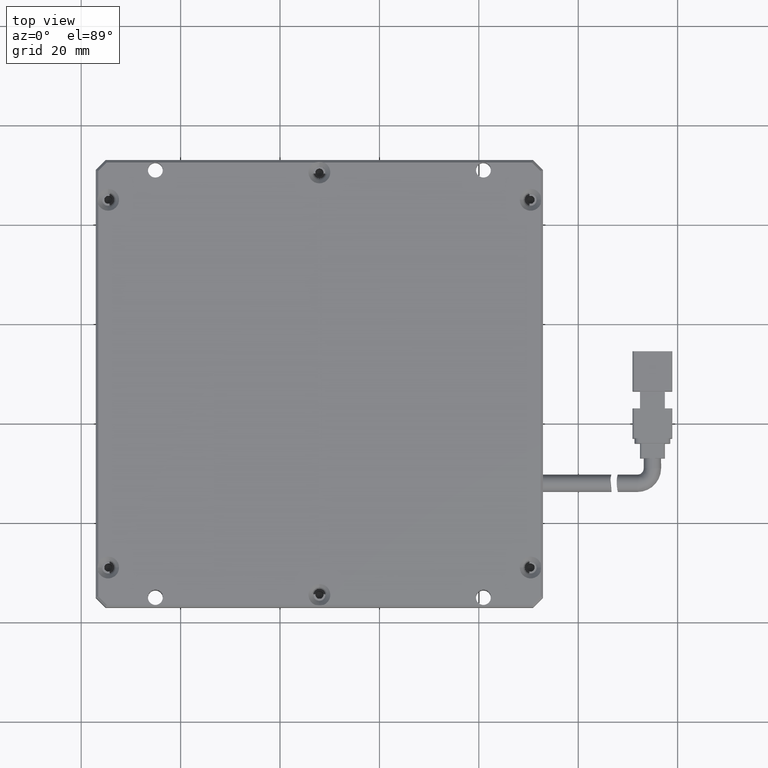
[diagram: clean part render]
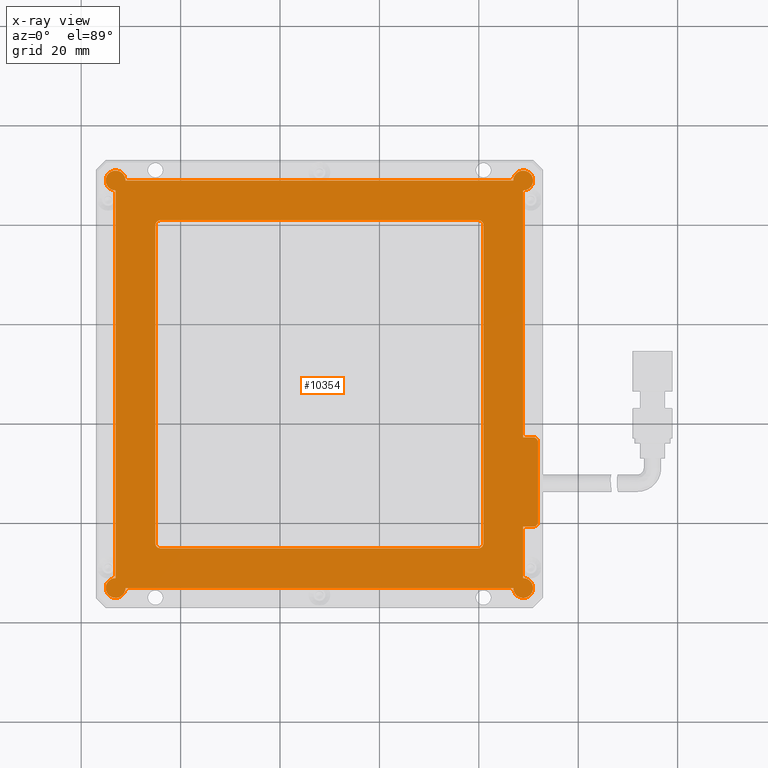
[diagram: x-ray — body ghosted, one internal face saturated and labeled with its STEP entity id]
A machine part, top view, then the same camera in x-ray: the body is ghosted and one INTERNAL B-rep face — a face not visible from any outside direction — is saturated and labeled: STEP entity #10354.
In plain terms, the highlighted planar face has unit normal (-0, 0, 1).
Its self-contained STEP definition (entity closure, byte-faithful):
#392 = VERTEX_POINT ( 'NONE', #1095 ) ;
#471 = AXIS2_PLACEMENT_3D ( 'NONE', #17261, #15841, #7512 ) ;
#517 = EDGE_CURVE ( 'NONE', #6477, #16627, #3420, .T. ) ;
#523 = DIRECTION ( 'NONE',  ( -0.0000000000000000000, -0.0000000000000000000, 1.000000000000000000 ) ) ;
#628 = CIRCLE ( 'NONE', #15770, 1.000000000000000900 ) ;
#819 = AXIS2_PLACEMENT_3D ( 'NONE', #3989, #13684, #5365 ) ;
#827 = VECTOR ( 'NONE', #16611, 1000.000000000000000 ) ;
#917 = CARTESIAN_POINT ( 'NONE',  ( 0.9207407407407775000, -4.059999999999994300, -2.000000000000000000 ) ) ;
#927 = ORIENTED_EDGE ( 'NONE', *, *, #2128, .T. ) ;
#1095 = CARTESIAN_POINT ( 'NONE',  ( 6.920740740740755300, 68.93999999999999800, -2.000000000000000000 ) ) ;
#1235 = ORIENTED_EDGE ( 'NONE', *, *, #8950, .T. ) ;
#1514 = ORIENTED_EDGE ( 'NONE', *, *, #14128, .T. ) ;
#1583 = CARTESIAN_POINT ( 'NONE',  ( -73.07925925925924600, 66.93999999999999800, -2.000000000000000000 ) ) ;
#1654 = AXIS2_PLACEMENT_3D ( 'NONE', #15470, #7140, #16914 ) ;
#1706 = CIRCLE ( 'NONE', #2737, 2.000000000000001800 ) ;
#1744 = CARTESIAN_POINT ( 'NONE',  ( -64.07925925925923100, -4.059999999999994300, -2.000000000000000000 ) ) ;
#1789 = EDGE_CURVE ( 'NONE', #16627, #2000, #13084, .T. ) ;
#1872 = DIRECTION ( 'NONE',  ( -0.0000000000000000000, -0.0000000000000000000, -1.000000000000000000 ) ) ;
#1901 = ORIENTED_EDGE ( 'NONE', *, *, #9074, .T. ) ;
#2000 = VERTEX_POINT ( 'NONE', #8662 ) ;
#2043 = CIRCLE ( 'NONE', #1654, 2.000000000000001800 ) ;
#2128 = EDGE_CURVE ( 'NONE', #2000, #4705, #10922, .T. ) ;
#2164 = LINE ( 'NONE', #2299, #2571 ) ;
#2231 = EDGE_CURVE ( 'NONE', #17252, #18024, #10272, .T. ) ;
#2299 = CARTESIAN_POINT ( 'NONE',  ( -73.07925925925924600, -0.7385637334317435300, -2.000000000000000000 ) ) ;
#2411 = VERTEX_POINT ( 'NONE', #12847 ) ;
#2556 = EDGE_CURVE ( 'NONE', #10603, #17093, #6719, .T. ) ;
#2571 = VECTOR ( 'NONE', #12011, 1000.000000000000000 ) ;
#2580 = EDGE_CURVE ( 'NONE', #14226, #8341, #8226, .T. ) ;
#2634 = CARTESIAN_POINT ( 'NONE',  ( 10.92074074074075800, 68.93999999999999800, -2.000000000000000000 ) ) ;
#2737 = AXIS2_PLACEMENT_3D ( 'NONE', #8225, #18034, #9660 ) ;
#2804 = CIRCLE ( 'NONE', #16435, 2.000000000000001800 ) ;
#2823 = ORIENTED_EDGE ( 'NONE', *, *, #16561, .T. ) ;
#2849 = CARTESIAN_POINT ( 'NONE',  ( -0.07925925925925114700, 60.94000000000000500, -2.000000000000000000 ) ) ;
#3032 = VERTEX_POINT ( 'NONE', #16434 ) ;
#3108 = CARTESIAN_POINT ( 'NONE',  ( -65.07925925925923100, 60.94000000000000500, -2.000000000000000000 ) ) ;
#3276 = VERTEX_POINT ( 'NONE', #16541 ) ;
#3335 = DIRECTION ( 'NONE',  ( -0.0000000000000000000, -0.0000000000000000000, 1.000000000000000000 ) ) ;
#3420 = LINE ( 'NONE', #6506, #8374 ) ;
#3752 = VECTOR ( 'NONE', #9337, 1000.000000000000000 ) ;
#3786 = DIRECTION ( 'NONE',  ( 0.0000000000000000000, 1.000000000000000000, -0.0000000000000000000 ) ) ;
#3804 = AXIS2_PLACEMENT_3D ( 'NONE', #11657, #3335, #13042 ) ;
#3989 = CARTESIAN_POINT ( 'NONE',  ( 8.920740740740756200, 68.93999999999999800, -2.000000000000000000 ) ) ;
#4030 = CARTESIAN_POINT ( 'NONE',  ( -0.07925925925922339100, -4.059999999999994300, -2.000000000000000000 ) ) ;
#4039 = CARTESIAN_POINT ( 'NONE',  ( 8.920740740740770400, 66.93999999999999800, -2.000000000000000000 ) ) ;
#4077 = EDGE_CURVE ( 'NONE', #3032, #18024, #8086, .T. ) ;
#4319 = EDGE_CURVE ( 'NONE', #14796, #11846, #17504, .T. ) ;
#4434 = EDGE_CURVE ( 'NONE', #10603, #2411, #13973, .T. ) ;
#4523 = LINE ( 'NONE', #6845, #827 ) ;
#4561 = CARTESIAN_POINT ( 'NONE',  ( 8.920740740740770400, -13.06000000000001600, -2.000000000000000000 ) ) ;
#4646 = VERTEX_POINT ( 'NONE', #13188 ) ;
#4705 = VERTEX_POINT ( 'NONE', #11572 ) ;
#4779 = AXIS2_PLACEMENT_3D ( 'NONE', #1744, #12875, #11477 ) ;
#4825 = DIRECTION ( 'NONE',  ( 1.000000000000000000, 0.0000000000000000000, 0.0000000000000000000 ) ) ;
#5012 = DIRECTION ( 'NONE',  ( 0.0000000000000000000, 1.000000000000000000, -0.0000000000000000000 ) ) ;
#5130 = DIRECTION ( 'NONE',  ( -1.000000000000000000, -0.0000000000000000000, -0.0000000000000000000 ) ) ;
#5365 = DIRECTION ( 'NONE',  ( 1.000000000000000000, 0.0000000000000000000, 0.0000000000000000000 ) ) ;
#5414 = DIRECTION ( 'NONE',  ( 1.000000000000000000, 0.0000000000000000000, 0.0000000000000000000 ) ) ;
#5732 = FACE_OUTER_BOUND ( 'NONE', #12897, .T. ) ;
#5876 = CARTESIAN_POINT ( 'NONE',  ( 10.92074074074078600, 17.26143626656825700, -1.999999999999999100 ) ) ;
#6031 = DIRECTION ( 'NONE',  ( -0.0000000000000000000, -0.0000000000000000000, 1.000000000000000000 ) ) ;
#6099 = AXIS2_PLACEMENT_3D ( 'NONE', #7078, #16852, #8463 ) ;
#6166 = VECTOR ( 'NONE', #5012, 1000.000000000000000 ) ;
#6356 = VECTOR ( 'NONE', #3786, 1000.000000000000000 ) ;
#6382 = CARTESIAN_POINT ( 'NONE',  ( 11.92074074074077400, 0.2614362665682608000, -1.999999999999999100 ) ) ;
#6477 = VERTEX_POINT ( 'NONE', #1583 ) ;
#6492 = DIRECTION ( 'NONE',  ( -0.0000000000000000000, -1.000000000000000000, 0.0000000000000000000 ) ) ;
#6506 = CARTESIAN_POINT ( 'NONE',  ( -73.07925925925924600, -13.06000000000001600, -2.000000000000000000 ) ) ;
#6548 = VECTOR ( 'NONE', #5130, 1000.000000000000000 ) ;
#6641 = EDGE_CURVE ( 'NONE', #392, #4646, #17267, .T. ) ;
#6719 = CIRCLE ( 'NONE', #4779, 1.000000000000000900 ) ;
#6845 = CARTESIAN_POINT ( 'NONE',  ( -73.07925925925924600, 17.26143626656825700, -2.000000000000000000 ) ) ;
#6965 = CARTESIAN_POINT ( 'NONE',  ( 0.9207407407407497400, 60.94000000000000500, -2.000000000000000000 ) ) ;
#7078 = CARTESIAN_POINT ( 'NONE',  ( -73.07925925925924600, -13.06000000000001600, -2.000000000000000000 ) ) ;
#7085 = AXIS2_PLACEMENT_3D ( 'NONE', #11815, #11512, #11394 ) ;
#7120 = CARTESIAN_POINT ( 'NONE',  ( -73.07925925925924600, 68.94000000000001200, -2.000000000000000000 ) ) ;
#7140 = DIRECTION ( 'NONE',  ( -0.0000000000000000000, -0.0000000000000000000, 1.000000000000000000 ) ) ;
#7195 = CARTESIAN_POINT ( 'NONE',  ( 8.920740740740770400, -0.7385637334317435300, -2.000000000000000000 ) ) ;
#7222 = LINE ( 'NONE', #3108, #14624 ) ;
#7228 = VECTOR ( 'NONE', #4825, 1000.000000000000000 ) ;
#7322 = CIRCLE ( 'NONE', #13699, 1.000000000000000900 ) ;
#7512 = DIRECTION ( 'NONE',  ( 1.000000000000000000, 0.0000000000000000000, 0.0000000000000000000 ) ) ;
#7551 = ORIENTED_EDGE ( 'NONE', *, *, #14349, .T. ) ;
#8086 = CIRCLE ( 'NONE', #7085, 1.000000000000000900 ) ;
#8225 = CARTESIAN_POINT ( 'NONE',  ( 8.920740740740756200, 68.93999999999999800, -2.000000000000000000 ) ) ;
#8226 = LINE ( 'NONE', #17899, #15681 ) ;
#8341 = VERTEX_POINT ( 'NONE', #4039 ) ;
#8349 = VECTOR ( 'NONE', #15307, 1000.000000000000000 ) ;
#8374 = VECTOR ( 'NONE', #6492, 1000.000000000000000 ) ;
#8401 = PLANE ( 'NONE',  #6099 ) ;
#8402 = ORIENTED_EDGE ( 'NONE', *, *, #13262, .T. ) ;
#8463 = DIRECTION ( 'NONE',  ( 1.000000000000000000, 0.0000000000000000000, 0.0000000000000000000 ) ) ;
#8509 = DIRECTION ( 'NONE',  ( 1.000000000000000000, 0.0000000000000000000, 0.0000000000000000000 ) ) ;
#8662 = CARTESIAN_POINT ( 'NONE',  ( -71.07925925925924600, -13.06000000000001600, -2.000000000000000000 ) ) ;
#8823 = CARTESIAN_POINT ( 'NONE',  ( 10.92074074074078600, 16.26143626656825700, -1.999999999999999100 ) ) ;
#8869 = EDGE_CURVE ( 'NONE', #4646, #6477, #2804, .T. ) ;
#8950 = EDGE_CURVE ( 'NONE', #17918, #18067, #12360, .T. ) ;
#9074 = EDGE_CURVE ( 'NONE', #16447, #2411, #628, .T. ) ;
#9209 = ORIENTED_EDGE ( 'NONE', *, *, #13719, .F. ) ;
#9225 = DIRECTION ( 'NONE',  ( 1.000000000000000000, 0.0000000000000000000, -0.0000000000000000000 ) ) ;
#9337 = DIRECTION ( 'NONE',  ( -1.000000000000000000, -0.0000000000000000000, -0.0000000000000000000 ) ) ;
#9524 = ORIENTED_EDGE ( 'NONE', *, *, #1789, .T. ) ;
#9660 = DIRECTION ( 'NONE',  ( 1.000000000000000000, 0.0000000000000000000, 0.0000000000000000000 ) ) ;
#9906 = ORIENTED_EDGE ( 'NONE', *, *, #4434, .F. ) ;
#9953 = CARTESIAN_POINT ( 'NONE',  ( -64.07925925925923100, -5.059999999999995200, -2.000000000000000000 ) ) ;
#10184 = CARTESIAN_POINT ( 'NONE',  ( -0.07925925925925114700, 59.94000000000000500, -2.000000000000000000 ) ) ;
#10223 = DIRECTION ( 'NONE',  ( -1.000000000000000000, 0.0000000000000000000, 0.0000000000000000000 ) ) ;
#10272 = LINE ( 'NONE', #10753, #3752 ) ;
#10286 = VERTEX_POINT ( 'NONE', #2634 ) ;
#10340 = CARTESIAN_POINT ( 'NONE',  ( 11.92074074074077400, 16.26143626656825700, -1.999999999999999100 ) ) ;
#10354 = ADVANCED_FACE ( 'NONE', ( #12699, #5732 ), #8401, .T. ) ;
#10538 = CIRCLE ( 'NONE', #819, 2.000000000000001800 ) ;
#10573 = ORIENTED_EDGE ( 'NONE', *, *, #2556, .T. ) ;
#10603 = VERTEX_POINT ( 'NONE', #9953 ) ;
#10605 = EDGE_CURVE ( 'NONE', #3032, #17093, #7222, .T. ) ;
#10753 = CARTESIAN_POINT ( 'NONE',  ( -65.07925925925923100, 60.94000000000000500, -2.000000000000000000 ) ) ;
#10922 = LINE ( 'NONE', #16863, #7228 ) ;
#10971 = ORIENTED_EDGE ( 'NONE', *, *, #10605, .F. ) ;
#11229 = EDGE_CURVE ( 'NONE', #14022, #14796, #11602, .T. ) ;
#11394 = DIRECTION ( 'NONE',  ( 1.000000000000000000, 0.0000000000000000000, 0.0000000000000000000 ) ) ;
#11477 = DIRECTION ( 'NONE',  ( 1.000000000000000000, 0.0000000000000000000, 0.0000000000000000000 ) ) ;
#11512 = DIRECTION ( 'NONE',  ( -0.0000000000000000000, -0.0000000000000000000, -1.000000000000000000 ) ) ;
#11572 = CARTESIAN_POINT ( 'NONE',  ( 6.920740740740768600, -13.06000000000001600, -2.000000000000000000 ) ) ;
#11593 = CARTESIAN_POINT ( 'NONE',  ( 10.92074074074078600, -0.7385637334317435300, -1.999999999999999100 ) ) ;
#11596 = DIRECTION ( 'NONE',  ( 1.000000000000000000, 0.0000000000000000000, 0.0000000000000000000 ) ) ;
#11602 = CIRCLE ( 'NONE', #3804, 2.000000000000001800 ) ;
#11657 = CARTESIAN_POINT ( 'NONE',  ( 8.920740740740770400, -13.06000000000001600, -2.000000000000000000 ) ) ;
#11815 = CARTESIAN_POINT ( 'NONE',  ( -64.07925925925923100, 59.94000000000000500, -2.000000000000000000 ) ) ;
#11846 = VERTEX_POINT ( 'NONE', #7195 ) ;
#11900 = AXIS2_PLACEMENT_3D ( 'NONE', #10184, #1872, #11596 ) ;
#12011 = DIRECTION ( 'NONE',  ( 1.000000000000000000, 0.0000000000000000000, 0.0000000000000000000 ) ) ;
#12360 = CIRCLE ( 'NONE', #15137, 1.000000000000000900 ) ;
#12699 = FACE_BOUND ( 'NONE', #13278, .T. ) ;
#12822 = DIRECTION ( 'NONE',  ( 1.051347561198064800E-016, -1.000000000000000000, -0.0000000000000000000 ) ) ;
#12847 = CARTESIAN_POINT ( 'NONE',  ( -0.07925925925922339100, -5.059999999999995200, -2.000000000000000000 ) ) ;
#12875 = DIRECTION ( 'NONE',  ( -0.0000000000000000000, 0.0000000000000000000, -1.000000000000000000 ) ) ;
#12897 = EDGE_LOOP ( 'NONE', ( #12995, #14043, #15119, #17322, #1235, #7551, #8402, #13820, #17192, #1514, #2823, #15222, #16810, #17842, #9524, #927 ) ) ;
#12995 = ORIENTED_EDGE ( 'NONE', *, *, #14581, .T. ) ;
#13042 = DIRECTION ( 'NONE',  ( 1.000000000000000000, 0.0000000000000000000, 0.0000000000000000000 ) ) ;
#13084 = CIRCLE ( 'NONE', #471, 2.000000000000001800 ) ;
#13178 = CARTESIAN_POINT ( 'NONE',  ( 10.92074074074077200, -13.06000000000001600, -2.000000000000000000 ) ) ;
#13188 = CARTESIAN_POINT ( 'NONE',  ( -71.07925925925924600, 68.93999999999999800, -2.000000000000000000 ) ) ;
#13262 = EDGE_CURVE ( 'NONE', #16909, #16194, #7322, .T. ) ;
#13278 = EDGE_LOOP ( 'NONE', ( #10971, #13560, #15758, #17339, #9209, #1901, #9906, #10573 ) ) ;
#13342 = CARTESIAN_POINT ( 'NONE',  ( 11.92074074074077400, -13.06000000000001600, -2.000000000000000000 ) ) ;
#13456 = CARTESIAN_POINT ( 'NONE',  ( -73.07925925925924600, 68.93999999999999800, -2.000000000000000000 ) ) ;
#13529 = VECTOR ( 'NONE', #9225, 1000.000000000000000 ) ;
#13560 = ORIENTED_EDGE ( 'NONE', *, *, #4077, .T. ) ;
#13684 = DIRECTION ( 'NONE',  ( -0.0000000000000000000, -0.0000000000000000000, 1.000000000000000000 ) ) ;
#13699 = AXIS2_PLACEMENT_3D ( 'NONE', #8823, #523, #10223 ) ;
#13719 = EDGE_CURVE ( 'NONE', #16447, #3276, #15801, .T. ) ;
#13729 = DIRECTION ( 'NONE',  ( -0.0000000000000000000, -0.0000000000000000000, -1.000000000000000000 ) ) ;
#13820 = ORIENTED_EDGE ( 'NONE', *, *, #16580, .T. ) ;
#13973 = LINE ( 'NONE', #16821, #13529 ) ;
#14022 = VERTEX_POINT ( 'NONE', #13178 ) ;
#14043 = ORIENTED_EDGE ( 'NONE', *, *, #11229, .T. ) ;
#14128 = EDGE_CURVE ( 'NONE', #8341, #10286, #10538, .T. ) ;
#14226 = VERTEX_POINT ( 'NONE', #16724 ) ;
#14349 = EDGE_CURVE ( 'NONE', #18067, #16909, #16877, .T. ) ;
#14361 = CARTESIAN_POINT ( 'NONE',  ( 10.92074074074078600, 0.2614362665682608000, -1.999999999999999100 ) ) ;
#14557 = CARTESIAN_POINT ( 'NONE',  ( 8.920740740740770400, -11.06000000000001500, -2.000000000000000000 ) ) ;
#14581 = EDGE_CURVE ( 'NONE', #4705, #14022, #2043, .T. ) ;
#14624 = VECTOR ( 'NONE', #12822, 1000.000000000000000 ) ;
#14687 = EDGE_CURVE ( 'NONE', #17252, #3276, #17932, .T. ) ;
#14796 = VERTEX_POINT ( 'NONE', #14557 ) ;
#14931 = CARTESIAN_POINT ( 'NONE',  ( -65.07925925925923100, -4.059999999999994300, -2.000000000000000000 ) ) ;
#15119 = ORIENTED_EDGE ( 'NONE', *, *, #4319, .T. ) ;
#15137 = AXIS2_PLACEMENT_3D ( 'NONE', #14361, #6031, #15777 ) ;
#15222 = ORIENTED_EDGE ( 'NONE', *, *, #6641, .T. ) ;
#15307 = DIRECTION ( 'NONE',  ( -4.205390244792259300E-016, 1.000000000000000000, -0.0000000000000000000 ) ) ;
#15316 = CARTESIAN_POINT ( 'NONE',  ( -73.07925925925924600, -11.06000000000001600, -2.000000000000000000 ) ) ;
#15470 = CARTESIAN_POINT ( 'NONE',  ( 8.920740740740770400, -13.06000000000001600, -2.000000000000000000 ) ) ;
#15681 = VECTOR ( 'NONE', #17225, 1000.000000000000000 ) ;
#15758 = ORIENTED_EDGE ( 'NONE', *, *, #2231, .F. ) ;
#15770 = AXIS2_PLACEMENT_3D ( 'NONE', #4030, #13729, #5414 ) ;
#15777 = DIRECTION ( 'NONE',  ( -1.000000000000000000, 0.0000000000000000000, 0.0000000000000000000 ) ) ;
#15801 = LINE ( 'NONE', #6965, #8349 ) ;
#15841 = DIRECTION ( 'NONE',  ( -0.0000000000000000000, -0.0000000000000000000, 1.000000000000000000 ) ) ;
#15868 = EDGE_CURVE ( 'NONE', #11846, #17918, #2164, .T. ) ;
#16194 = VERTEX_POINT ( 'NONE', #5876 ) ;
#16434 = CARTESIAN_POINT ( 'NONE',  ( -65.07925925925923100, 59.94000000000000500, -2.000000000000000000 ) ) ;
#16435 = AXIS2_PLACEMENT_3D ( 'NONE', #7120, #16892, #8509 ) ;
#16447 = VERTEX_POINT ( 'NONE', #917 ) ;
#16541 = CARTESIAN_POINT ( 'NONE',  ( 0.9207407407407497400, 59.94000000000000500, -2.000000000000000000 ) ) ;
#16561 = EDGE_CURVE ( 'NONE', #10286, #392, #1706, .T. ) ;
#16580 = EDGE_CURVE ( 'NONE', #16194, #14226, #4523, .T. ) ;
#16611 = DIRECTION ( 'NONE',  ( -1.000000000000000000, -0.0000000000000000000, -0.0000000000000000000 ) ) ;
#16627 = VERTEX_POINT ( 'NONE', #15316 ) ;
#16724 = CARTESIAN_POINT ( 'NONE',  ( 8.920740740740770400, 17.26143626656825700, -2.000000000000000000 ) ) ;
#16810 = ORIENTED_EDGE ( 'NONE', *, *, #8869, .T. ) ;
#16821 = CARTESIAN_POINT ( 'NONE',  ( -65.07925925925923100, -5.059999999999995200, -2.000000000000000000 ) ) ;
#16852 = DIRECTION ( 'NONE',  ( -0.0000000000000000000, 0.0000000000000000000, 1.000000000000000000 ) ) ;
#16863 = CARTESIAN_POINT ( 'NONE',  ( -73.07925925925924600, -13.06000000000001600, -2.000000000000000000 ) ) ;
#16877 = LINE ( 'NONE', #13342, #6166 ) ;
#16892 = DIRECTION ( 'NONE',  ( -0.0000000000000000000, -0.0000000000000000000, 1.000000000000000000 ) ) ;
#16909 = VERTEX_POINT ( 'NONE', #10340 ) ;
#16914 = DIRECTION ( 'NONE',  ( 1.000000000000000000, 0.0000000000000000000, 0.0000000000000000000 ) ) ;
#17093 = VERTEX_POINT ( 'NONE', #14931 ) ;
#17192 = ORIENTED_EDGE ( 'NONE', *, *, #2580, .T. ) ;
#17225 = DIRECTION ( 'NONE',  ( 0.0000000000000000000, 1.000000000000000000, -0.0000000000000000000 ) ) ;
#17252 = VERTEX_POINT ( 'NONE', #2849 ) ;
#17261 = CARTESIAN_POINT ( 'NONE',  ( -73.07925925925924600, -13.06000000000001600, -2.000000000000000000 ) ) ;
#17267 = LINE ( 'NONE', #13456, #6548 ) ;
#17322 = ORIENTED_EDGE ( 'NONE', *, *, #15868, .T. ) ;
#17339 = ORIENTED_EDGE ( 'NONE', *, *, #14687, .T. ) ;
#17435 = CARTESIAN_POINT ( 'NONE',  ( -64.07925925925923100, 60.94000000000000500, -2.000000000000000000 ) ) ;
#17504 = LINE ( 'NONE', #4561, #6356 ) ;
#17842 = ORIENTED_EDGE ( 'NONE', *, *, #517, .T. ) ;
#17899 = CARTESIAN_POINT ( 'NONE',  ( 8.920740740740770400, -13.06000000000001600, -2.000000000000000000 ) ) ;
#17918 = VERTEX_POINT ( 'NONE', #11593 ) ;
#17932 = CIRCLE ( 'NONE', #11900, 1.000000000000000900 ) ;
#18024 = VERTEX_POINT ( 'NONE', #17435 ) ;
#18034 = DIRECTION ( 'NONE',  ( -0.0000000000000000000, -0.0000000000000000000, 1.000000000000000000 ) ) ;
#18067 = VERTEX_POINT ( 'NONE', #6382 ) ;